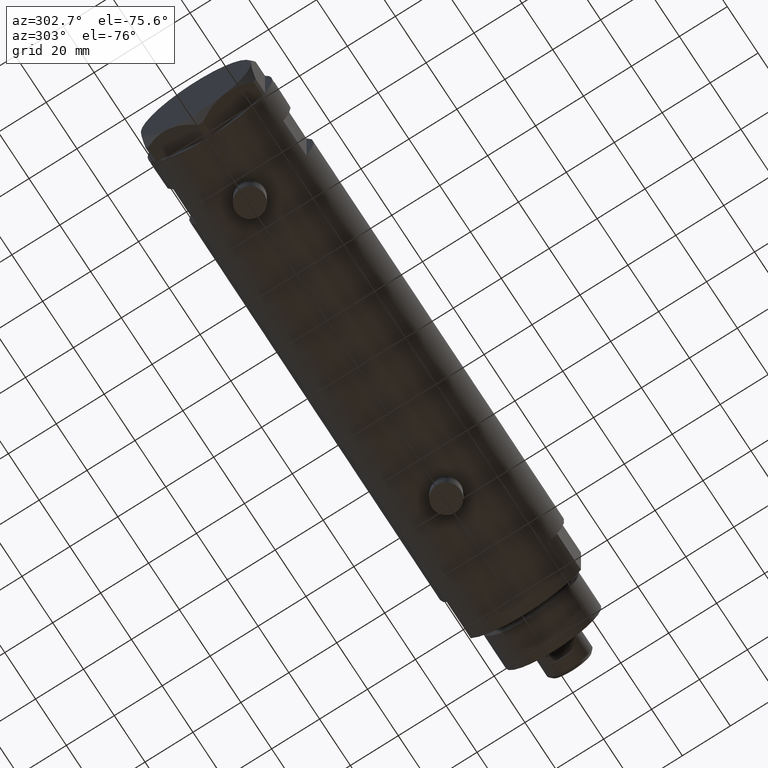
[diagram: clean part render]
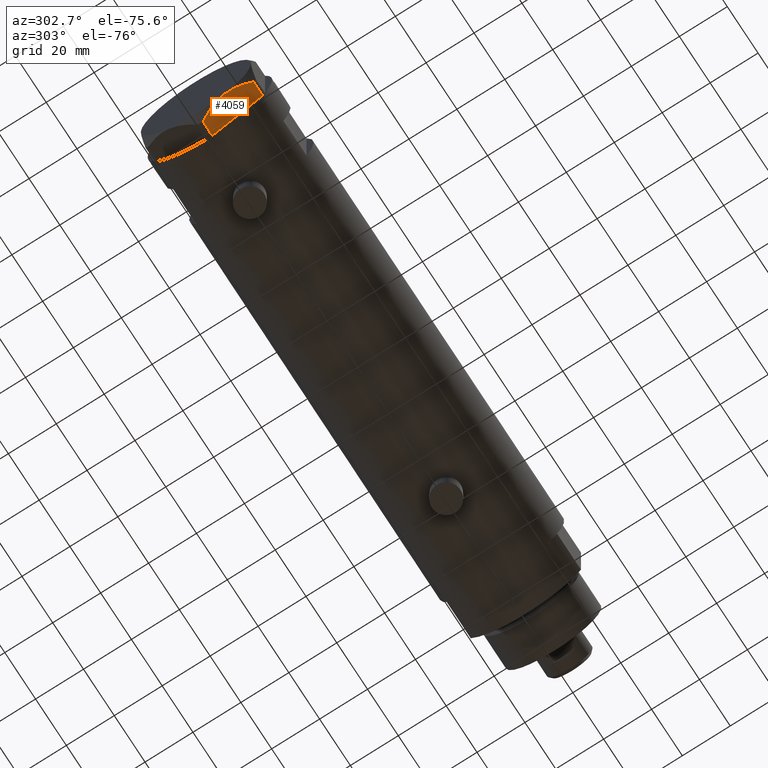
[diagram: same view with one face highlighted and labeled with its STEP entity id]
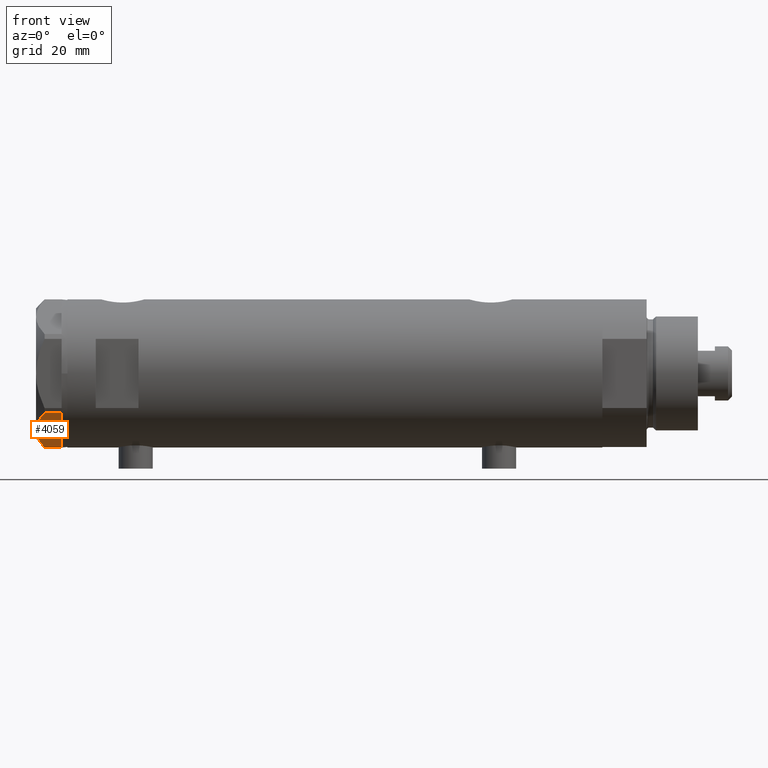
[diagram: same view with one face highlighted and labeled with its STEP entity id]
A machine part, auxiliary view. The second image highlights one B-rep face of the part: STEP entity #4059.
A second angle (front view) of the same face is appended — the face is thin or edge-on in the first view.
In plain terms, the highlighted planar face has unit normal (0, 0.5, 0.866).
Its self-contained STEP definition (entity closure, byte-faithful):
#6 = LINE ( 'NONE', #471, #486 ) ;
#81 = EDGE_CURVE ( 'NONE', #4171, #1414, #1232, .T. ) ;
#163 = CARTESIAN_POINT ( 'NONE',  ( -9.197898616902920210, 21.24770314027494678, 8.852712638955802404 ) ) ;
#165 = EDGE_CURVE ( 'NONE', #1414, #1015, #2925, .T. ) ;
#195 = ORIENTED_EDGE ( 'NONE', *, *, #806, .T. ) ;
#231 = DIRECTION ( 'NONE',  ( -0.8660254037844380415, -0.5000000000000008882, 0.000000000000000000 ) ) ;
#274 = ORIENTED_EDGE ( 'NONE', *, *, #4675, .T. ) ;
#316 = CARTESIAN_POINT ( 'NONE',  ( -11.50000000000004441, 19.91858428704211548, 9.000000000000000000 ) ) ;
#346 = CARTESIAN_POINT ( 'NONE',  ( -19.07486218896994856, 15.54523556316589961, 7.397272853991406549 ) ) ;
#349 = DIRECTION ( 'NONE',  ( 0.000000000000000000, 0.000000000000000000, -1.000000000000000000 ) ) ;
#471 = CARTESIAN_POINT ( 'NONE',  ( -22.03005154776143115, 13.83905619136131726, 9.000000000000000000 ) ) ;
#486 = VECTOR ( 'NONE', #1877, 1000.000000000000000 ) ;
#531 = LINE ( 'NONE', #3515, #1040 ) ;
#541 = CARTESIAN_POINT ( 'NONE',  ( -0.9699484522384356211, 25.99811238272282310, 5.983800287807548912 ) ) ;
#766 = DIRECTION ( 'NONE',  ( 0.8660254037844380415, 0.5000000000000008882, 0.000000000000000000 ) ) ;
#806 = EDGE_CURVE ( 'NONE', #4345, #1015, #6, .T. ) ;
#916 = EDGE_CURVE ( 'NONE', #2514, #2762, #2531, .T. ) ;
#995 = ORIENTED_EDGE ( 'NONE', *, *, #81, .F. ) ;
#1015 = VERTEX_POINT ( 'NONE', #1454 ) ;
#1040 = VECTOR ( 'NONE', #1695, 1000.000000000000227 ) ;
#1123 = CARTESIAN_POINT ( 'NONE',  ( 0.000000000000000000, 26.55811238272274366, 9.000000000000000000 ) ) ;
#1232 = B_SPLINE_CURVE_WITH_KNOTS ( 'NONE', 3,
 ( #541, #1343, #2009, #3154, #3524, #163, #1654, #2779, #4293, #2829 ),
 .UNSPECIFIED., .F., .F.,
 ( 4, 2, 2, 2, 4 ),
 ( 0.001228959670438516723, 0.007497079744270820564, 0.01063113978118697227, 0.01219816979964504812, 0.01376519981810312397 ),
 .UNSPECIFIED. ) ;
#1241 = ORIENTED_EDGE ( 'NONE', *, *, #3312, .T. ) ;
#1343 = CARTESIAN_POINT ( 'NONE',  ( -2.626494320835632390, 25.04170517956325881, 6.877782426143454586 ) ) ;
#1366 = VECTOR ( 'NONE', #231, 1000.000000000000227 ) ;
#1414 = VERTEX_POINT ( 'NONE', #4457 ) ;
#1436 = FACE_OUTER_BOUND ( 'NONE', #1635, .T. ) ;
#1454 = CARTESIAN_POINT ( 'NONE',  ( -22.03005154776144181, 13.83905619136131371, 5.983800287807625295 ) ) ;
#1470 = CARTESIAN_POINT ( 'NONE',  ( -21.20080365460318461, 14.31782268570115768, 6.431317509509388408 ) ) ;
#1586 = CARTESIAN_POINT ( 'NONE',  ( -22.03005154776144181, 13.83905619136131371, 5.983800287807625295 ) ) ;
#1635 = EDGE_LOOP ( 'NONE', ( #1241, #195, #4066, #995, #274, #1991, #2860 ) ) ;
#1654 = CARTESIAN_POINT ( 'NONE',  ( -9.656518383329848021, 20.98291889467267168, 8.907842277728436287 ) ) ;
#1692 = EDGE_CURVE ( 'NONE', #2762, #4156, #531, .T. ) ;
#1695 = DIRECTION ( 'NONE',  ( -0.8660254037844380415, -0.5000000000000008882, 0.000000000000000000 ) ) ;
#1792 = DIRECTION ( 'NONE',  ( -0.8660254037844380415, -0.5000000000000008882, 0.000000000000000000 ) ) ;
#1795 = CARTESIAN_POINT ( 'NONE',  ( -17.32831362639718975, 16.55360584592005679, 8.040681765829335248 ) ) ;
#1877 = DIRECTION ( 'NONE',  ( 0.000000000000000000, 0.000000000000000000, 1.000000000000000000 ) ) ;
#1991 = ORIENTED_EDGE ( 'NONE', *, *, #916, .T. ) ;
#2009 = CARTESIAN_POINT ( 'NONE',  ( -4.320186229909880105, 24.06385169993494699, 7.629374868826106493 ) ) ;
#2514 = VERTEX_POINT ( 'NONE', #3625 ) ;
#2531 = LINE ( 'NONE', #2561, #4639 ) ;
#2561 = CARTESIAN_POINT ( 'NONE',  ( 0.000000000000000000, 26.55811238272274366, 0.000000000000000000 ) ) ;
#2569 = CARTESIAN_POINT ( 'NONE',  ( -0.9699484522385775076, 25.99811238272273783, 9.000000000000000000 ) ) ;
#2762 = VERTEX_POINT ( 'NONE', #4558 ) ;
#2779 = CARTESIAN_POINT ( 'NONE',  ( -10.58093321976963175, 20.44920774001128549, 8.981686407609499767 ) ) ;
#2829 = CARTESIAN_POINT ( 'NONE',  ( -11.50000000000004441, 19.91858428704211548, 9.000000000000000000 ) ) ;
#2860 = ORIENTED_EDGE ( 'NONE', *, *, #1692, .T. ) ;
#2925 = B_SPLINE_CURVE_WITH_KNOTS ( 'NONE', 3,
 ( #316, #3998, #4366, #1795, #4450, #4084, #346, #3329, #1470, #1586 ),
 .UNSPECIFIED., .F., .F.,
 ( 4, 2, 2, 2, 4 ),
 ( 0.01376519981810312397, 0.01998941321701588544, 0.02154546656674408145, 0.02310151991647227399, 0.02621362661592866600 ),
 .UNSPECIFIED. ) ;
#3154 = CARTESIAN_POINT ( 'NONE',  ( -6.946777556903624529, 22.54738849024398206, 8.426899937603780089 ) ) ;
#3177 = LINE ( 'NONE', #4693, #1366 ) ;
#3272 = LINE ( 'NONE', #2569, #3568 ) ;
#3312 = EDGE_CURVE ( 'NONE', #4156, #4345, #3177, .T. ) ;
#3329 = CARTESIAN_POINT ( 'NONE',  ( -20.35958612119326361, 14.80349985506240884, 6.844201024438374859 ) ) ;
#3386 = CARTESIAN_POINT ( 'NONE',  ( -22.03005154776142760, 13.83905619136131904, 0.000000000000000000 ) ) ;
#3515 = CARTESIAN_POINT ( 'NONE',  ( 0.000000000000000000, 26.55811238272274366, 0.000000000000000000 ) ) ;
#3524 = CARTESIAN_POINT ( 'NONE',  ( -7.836767740116576952, 22.03355241838985279, 8.637313967156947214 ) ) ;
#3568 = VECTOR ( 'NONE', #349, 1000.000000000000000 ) ;
#3625 = CARTESIAN_POINT ( 'NONE',  ( -0.9699484522385772856, 25.99811238272273783, 0.000000000000000000 ) ) ;
#3998 = CARTESIAN_POINT ( 'NONE',  ( -13.32175508098984729, 18.86679350063496585, 9.000000000000088818 ) ) ;
#4059 = ADVANCED_FACE ( 'NONE', ( #1436 ), #4080, .F. ) ;
#4066 = ORIENTED_EDGE ( 'NONE', *, *, #165, .F. ) ;
#4080 = PLANE ( 'NONE',  #4440 ) ;
#4084 = CARTESIAN_POINT ( 'NONE',  ( -18.64279229058394804, 15.79469123530778951, 7.570552255229721084 ) ) ;
#4127 = DIRECTION ( 'NONE',  ( 0.5000000000000009992, -0.8660254037844381525, 0.000000000000000000 ) ) ;
#4156 = VERTEX_POINT ( 'NONE', #4831 ) ;
#4171 = VERTEX_POINT ( 'NONE', #4806 ) ;
#4293 = CARTESIAN_POINT ( 'NONE',  ( -11.04134848610939557, 20.18338686205100885, 9.000000000000094147 ) ) ;
#4345 = VERTEX_POINT ( 'NONE', #3386 ) ;
#4366 = CARTESIAN_POINT ( 'NONE',  ( -15.11535457301033247, 17.83125835109856183, 8.707651728477001640 ) ) ;
#4440 = AXIS2_PLACEMENT_3D ( 'NONE', #1123, #4127, #766 ) ;
#4450 = CARTESIAN_POINT ( 'NONE',  ( -17.77001848220191604, 16.29858742851882170, 7.892128867758443356 ) ) ;
#4457 = CARTESIAN_POINT ( 'NONE',  ( -11.50000000000004441, 19.91858428704211548, 9.000000000000000000 ) ) ;
#4558 = CARTESIAN_POINT ( 'NONE',  ( -0.9999999999999089617, 25.98076211353316367, 0.000000000000000000 ) ) ;
#4639 = VECTOR ( 'NONE', #1792, 1000.000000000000227 ) ;
#4675 = EDGE_CURVE ( 'NONE', #4171, #2514, #3272, .T. ) ;
#4693 = CARTESIAN_POINT ( 'NONE',  ( 0.000000000000000000, 26.55811238272274366, 0.000000000000000000 ) ) ;
#4806 = CARTESIAN_POINT ( 'NONE',  ( -0.9699484522384356211, 25.99811238272282310, 5.983800287807548912 ) ) ;
#4831 = CARTESIAN_POINT ( 'NONE',  ( -22.00000000000008171, 13.85640646055089498, 0.000000000000000000 ) ) ;